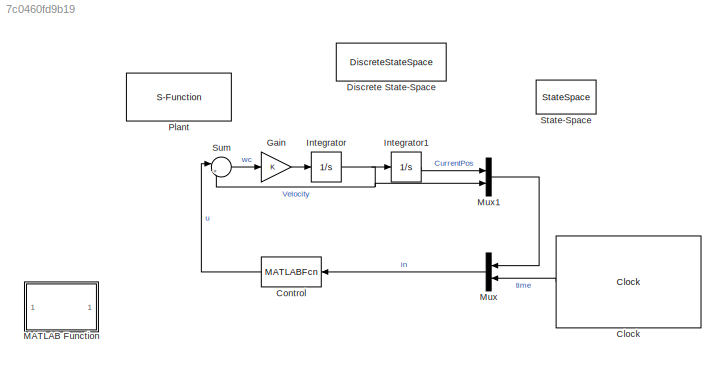
MODEL slx_7c0460fd9b19
KIND model
CONFIG AbsTol = auto
CONFIG EnableMultiTasking = on
CONFIG FixedStep = 0.001
CONFIG MaxStep = auto
CONFIG MinStep = auto
CONFIG RelTol = 1e-3
CONFIG SampleTimeConstraint = Unconstrained
CONFIG SolverName = VariableStepAuto
CONFIG StartTime = 0.0
CONFIG StopTime = time_end
BLOCK [Clock] Clock
  Decimation = 1
  DisplayTime = on
BLOCK [MATLABFcn] Control
  MATLABFcn = collisioncon
BLOCK [DiscreteStateSpace] Discrete State-Space
  A = A
  B = B
  C = C
  Commented = on
  D = D
  InitialCondition = Initialcondition
  SampleTime = -1
BLOCK [Gain] Gain
BLOCK [Integrator] Integrator
  InitialCondition = zeros(2*40,1)
BLOCK [Integrator] Integrator1
  InitialCondition = InitialPosition
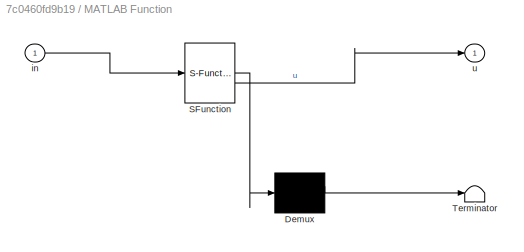
BLOCK [SubSystem] MATLAB Function
  Commented = on
  ErrorFcn = Stateflow.Translate.translate
  NameLocation = top
  PermitHierarchicalResolution = ExplicitOnly
  SFBlockType = MATLAB Function
  TreatAsAtomicUnit = on
BLOCK [Demux] MATLAB Function/ Demux 
  Outputs = 1
BLOCK [S-Function] MATLAB Function/ SFunction 
  EnableBusSupport = on
  FunctionName = sf_sfun
  PortCounts = [1 2]
  SFcnIsStateOwnerBlock = off
  SFunctionDeploymentMode = off
  Tag = Stateflow S-Function 2
BLOCK [Terminator] MATLAB Function/ Terminator 
BLOCK [Inport] MATLAB Function/in
BLOCK [Outport] MATLAB Function/u
BLOCK [Mux] Mux
  DisplayOption = bar
  Inputs = 2
BLOCK [Mux] Mux1
  DisplayOption = bar
  Inputs = 2
  NameLocation = top
BLOCK [S-Function] Plant
  Commented = on
  EnableBusSupport = off
  FunctionName = AttitudeDynamics
  SFcnIsStateOwnerBlock = off
  SFunctionDeploymentMode = off
BLOCK [StateSpace] State-Space
  A = A
  B = B
  C = C
  Commented = on
  D = D
  InitialCondition = Initialcondition
BLOCK [Sum] Sum
  Inputs = |+-
LINE Clock:1 -> Mux:2
LINE Control:1 -> Sum:1
LINE Gain:1 -> Integrator:1
LINE Integrator1:1 -> Mux1:1
NET Integrator:1 -> Integrator1:1, Mux1:2, Sum:2
LINE Mux1:1 -> Mux:1
LINE Mux:1 -> Control:1
LINE Sum:1 -> Gain:1
note: NET lines group one-source signal fan-out (src -> all destinations, sorted); 1:1 wires keep LINE
CHART MATLAB Function states=1 transitions=1
  STATE_LABEL 'eML_blk_kernel()'
  STATE_LABEL 'SCRIPT:\nfunction u = collisioncon(in)\nglobal Highway Obstacle\nglobal UavTeam\nglobal gcount gfigure\n\ngcount = gcount + 1;\n\nM = UavTeam.AvailableNumMax;\nV = [];\nrh = Highway(1).rh ;%管道宽度的一半\nrb=Highway(1).rb;%管道缓冲区宽度\n\nfor k = 1:M\n    UavTeam.Uav(k).CurrentPos =  in(2*(k-1)+1:2*k);\n    UavTeam.Uav(k).Velocity   =  in(2*M+2*(k-1)+1: 2*M+2*k);\nend\n\nfor k = 1:M\n    % Velocity control command\n\n      Pcur ...<+3608ch>'
CHART  states=0 transitions=0
